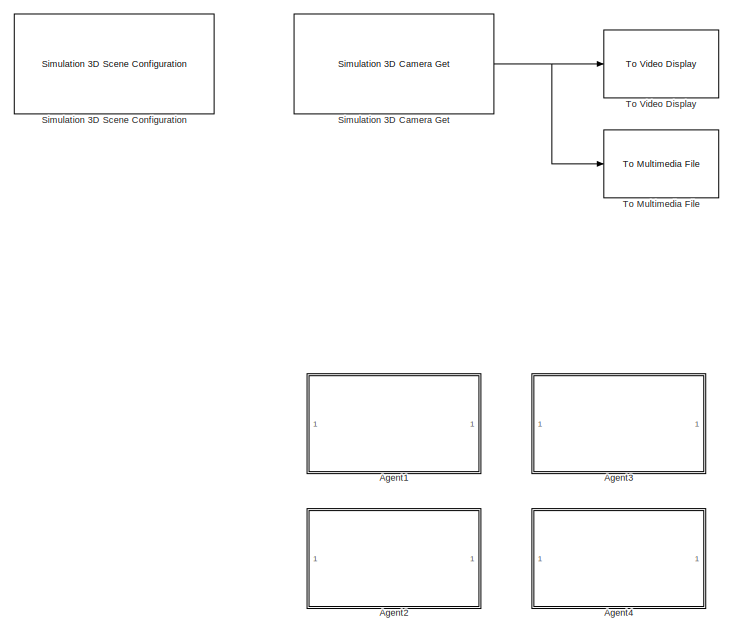
[diagram: root canvas - part 1/2, full width, top band]
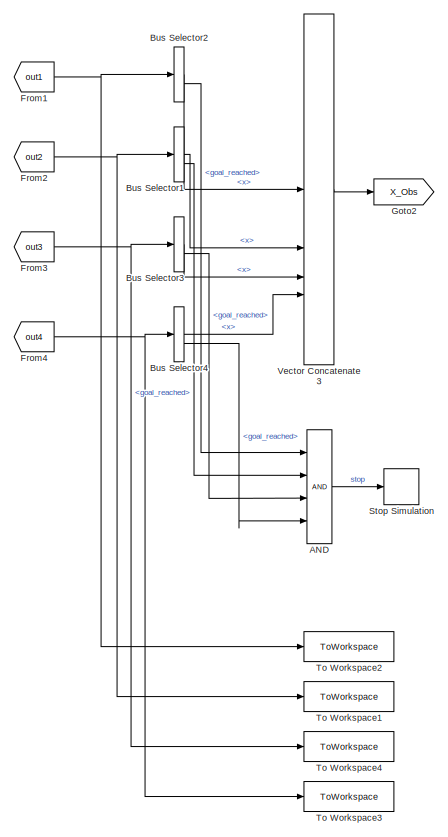
[diagram: root canvas - part 2/2, bottom left region]
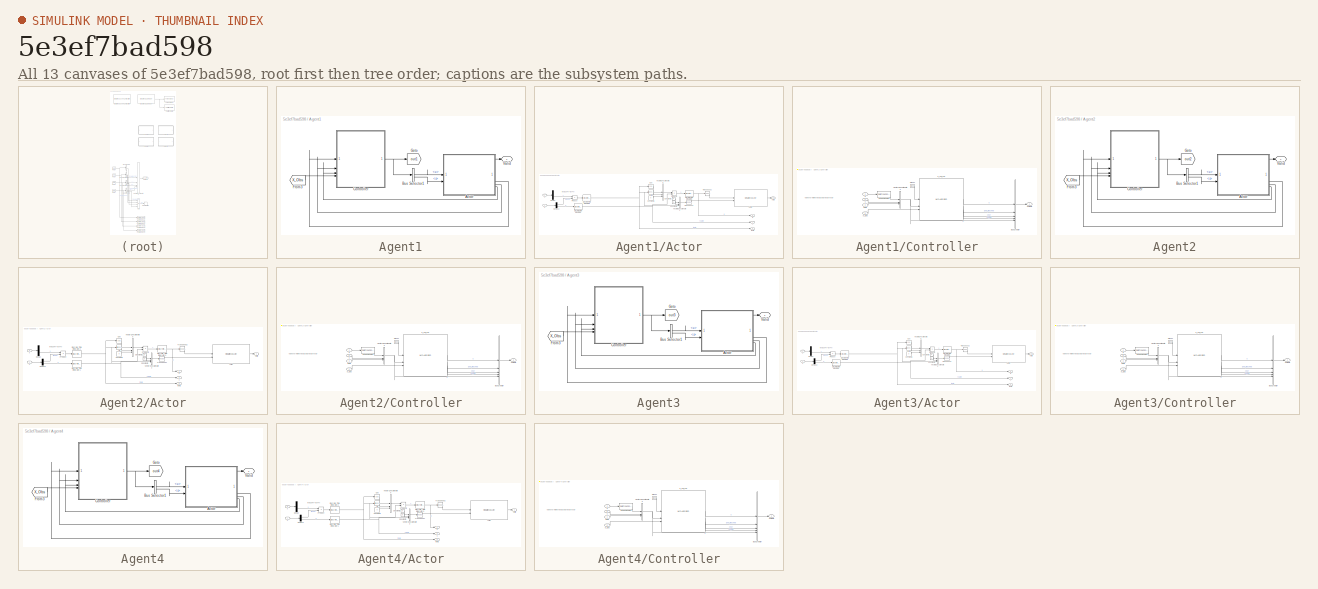
[diagram: thumbnail index - all 13 canvases of the model, root first then tree order]
MODEL slx_5e3ef7bad598
KIND model
CONFIG AbsTol = auto
CONFIG EnableMultiTasking = off
CONFIG FixedStep = config.timestep
CONFIG MaxStep = auto
CONFIG MinStep = auto
CONFIG RelTol = 1e-3
CONFIG SampleTimeConstraint = Unconstrained
CONFIG SolverName = FixedStepAuto
CONFIG StartTime = 0.0
CONFIG StopTime = config.t_max
BLOCK [Logic] AND
  AllPortsSameDT = off
  IconShape = distinctive
  Inputs = 4
  OutDataTypeStr = boolean
BLOCK [SubSystem] Agent1
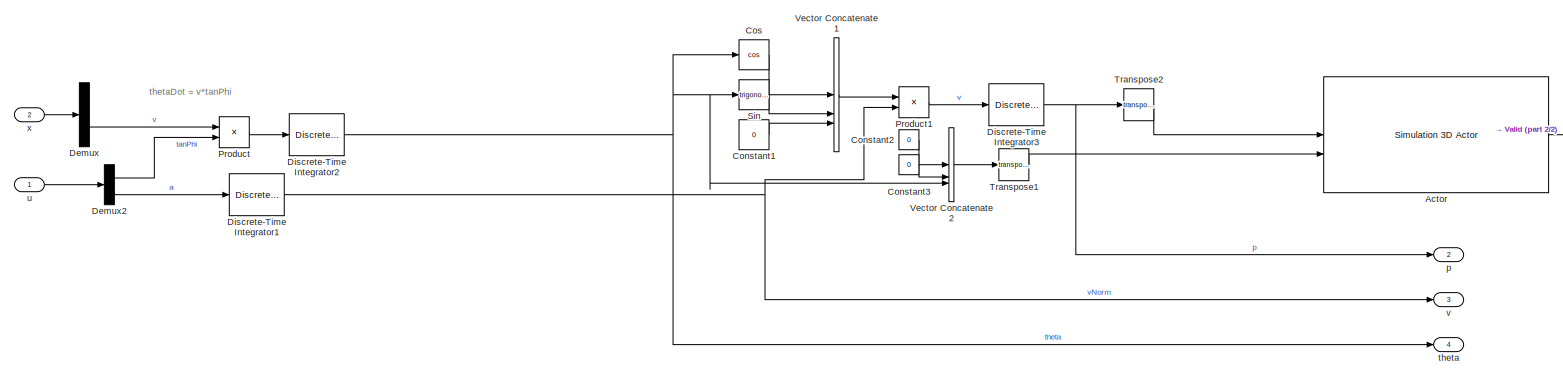
[diagram: Agent1/Actor - part 1/2, most of the canvas]
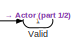
[diagram: Agent1/Actor - part 2/2, middle right region]
BLOCK [SubSystem] Agent1/Actor
BLOCK [Reference] Agent1/Actor/Actor  REF=sim3dlib/Simulation 3D Actor
  LibrarySourceBlock = sl3dlib/Simulation 3D/Actors/Simulation 3D Actor
  Priority = 1
  SourceBlock = sim3dlib/Simulation 3D Actor
  SourceType = Simulation 3D Actor
BLOCK [Constant] Agent1/Actor/Constant1
  Value = 0
BLOCK [Constant] Agent1/Actor/Constant2
  Value = 0
BLOCK [Constant] Agent1/Actor/Constant3
  Value = 0
BLOCK [Trigonometry] Agent1/Actor/Cos
  Operator = cos
BLOCK [Demux] Agent1/Actor/Demux
  Outputs = 5
BLOCK [Demux] Agent1/Actor/Demux2
  Outputs = 2
BLOCK [DiscreteIntegrator] Agent1/Actor/Discrete-Time Integrator1
  ICPrevOutput = DiscIntNeverNeededParam
  ICPrevScaledInput = DiscIntNeverNeededParam
  InitialCondition = agentsInfo{id}.v
  InitialConditionSetting = Auto
  LimitOutput = on
  LowerSaturationLimit = -config.v_max/sqrt(2)
  SampleTime = -1
  UpperSaturationLimit = config.v_max/sqrt(2)
BLOCK [DiscreteIntegrator] Agent1/Actor/Discrete-Time Integrator2
  ICPrevOutput = DiscIntNeverNeededParam
  ICPrevScaledInput = DiscIntNeverNeededParam
  InitialCondition = agentsInfo{id}.theta
  InitialConditionSetting = Auto
  SampleTime = -1
BLOCK [DiscreteIntegrator] Agent1/Actor/Discrete-Time Integrator3
  ICPrevOutput = DiscIntNeverNeededParam
  ICPrevScaledInput = DiscIntNeverNeededParam
  InitialCondition = agentsInfo{id}.p
  InitialConditionSetting = Auto
  LowerSaturationLimit = -config.vMax
  SampleTime = -1
  UpperSaturationLimit = config.vMax
BLOCK [Product] Agent1/Actor/Product
BLOCK [Product] Agent1/Actor/Product1
BLOCK [Trigonometry] Agent1/Actor/Sin
BLOCK [Math] Agent1/Actor/Transpose1
  Operator = transpose
BLOCK [Math] Agent1/Actor/Transpose2
  Operator = transpose
BLOCK [Outport] Agent1/Actor/Valid
BLOCK [Concatenate] Agent1/Actor/Vector Concatenate1
  NumInputs = 3
BLOCK [Concatenate] Agent1/Actor/Vector Concatenate2
  NumInputs = 3
BLOCK [Outport] Agent1/Actor/p
  Port = 2
BLOCK [Outport] Agent1/Actor/theta
  Port = 4
BLOCK [Inport] Agent1/Actor/u
BLOCK [Outport] Agent1/Actor/v
  Port = 3
BLOCK [Inport] Agent1/Actor/x
  Port = 2
BLOCK [BusSelector] Agent1/Bus Selector1
  OutputSignals = u,x
BLOCK [SubSystem] Agent1/Controller
BLOCK [BusCreator] Agent1/Controller/Bus Creator
  DisplayOption = bar
  InheritFromInputs = on
  Inputs = 5
BLOCK [DataTypeConversion] Agent1/Controller/Cast To Double2
  OutDataTypeStr = double
  RndMeth = Floor
  SaturateOnIntegerOverflow = off
BLOCK [Clock] Agent1/Controller/Clock1
BLOCK [Concatenate] Agent1/Controller/Vector Concatenate2
  NumInputs = 3
BLOCK [Inport] Agent1/Controller/X_Obs
  Port = 4
BLOCK [MATLABSystem] Agent1/Controller/h_cbf_car
  MaskDisplay = disp('h_cbf_car');\nport_label('input',1,'t');\nport_label('input',2,'x');\nport_label('input',3,'X_obs');\nport_label('output',1,'u');\nport_label('output',2,'goal_reached');\nport_label('output',3,'cost');\nport_label('output',4,'exit_flag');  <repeated x4 — deduplicated; at blocks: h_cbf_car>
  MaskType = h_cbf_car
  SimulateUsing = Interpreted execution
  System = h_cbf_car
  agents_info = agentsInfo
  config = config
  id = id
BLOCK [Outport] Agent1/Controller/outData
BLOCK [Inport] Agent1/Controller/p
BLOCK [Inport] Agent1/Controller/theta
  Port = 3
BLOCK [Inport] Agent1/Controller/v
  Port = 2
BLOCK [From] Agent1/From3
  GotoTag = X_Obs
  TagVisibility = global
BLOCK [Goto] Agent1/Goto
  GotoTag = out1
  TagVisibility = global
BLOCK [Outport] Agent1/Valid
BLOCK [SubSystem] Agent2
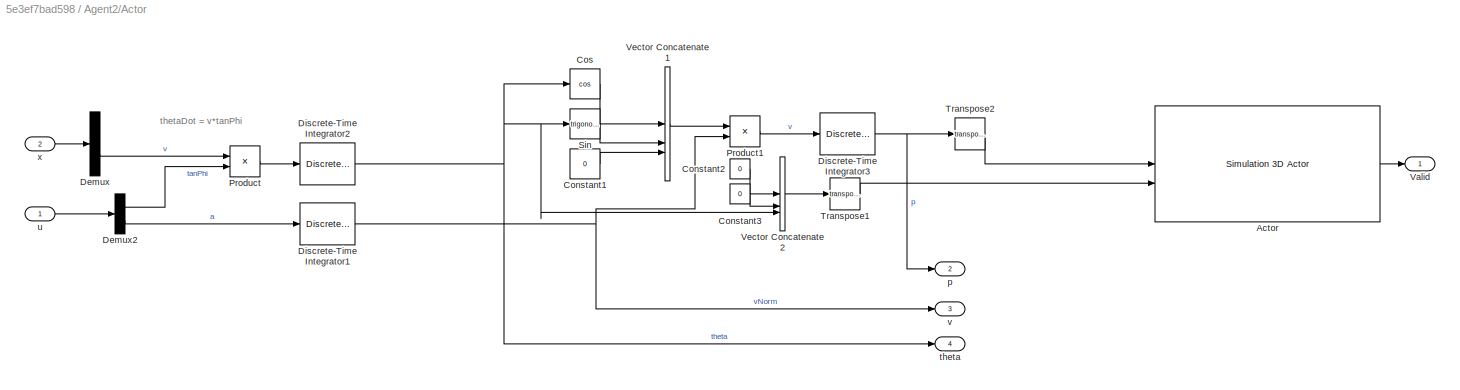
BLOCK [SubSystem] Agent2/Actor
BLOCK [Reference] Agent2/Actor/Actor  REF=sim3dlib/Simulation 3D Actor
  LibrarySourceBlock = sl3dlib/Simulation 3D/Actors/Simulation 3D Actor
  Priority = 1
  SourceBlock = sim3dlib/Simulation 3D Actor
  SourceType = Simulation 3D Actor
BLOCK [Constant] Agent2/Actor/Constant1
  Value = 0
BLOCK [Constant] Agent2/Actor/Constant2
  Value = 0
BLOCK [Constant] Agent2/Actor/Constant3
  Value = 0
BLOCK [Trigonometry] Agent2/Actor/Cos
  Operator = cos
BLOCK [Demux] Agent2/Actor/Demux
  Outputs = 5
BLOCK [Demux] Agent2/Actor/Demux2
  Outputs = 2
BLOCK [DiscreteIntegrator] Agent2/Actor/Discrete-Time Integrator1
  ICPrevOutput = DiscIntNeverNeededParam
  ICPrevScaledInput = DiscIntNeverNeededParam
  InitialCondition = agentsInfo{id}.v
  InitialConditionSetting = Auto
  LimitOutput = on
  LowerSaturationLimit = -config.v_max/sqrt(2)
  SampleTime = -1
  UpperSaturationLimit = config.v_max/sqrt(2)
BLOCK [DiscreteIntegrator] Agent2/Actor/Discrete-Time Integrator2
  ICPrevOutput = DiscIntNeverNeededParam
  ICPrevScaledInput = DiscIntNeverNeededParam
  InitialCondition = agentsInfo{id}.theta
  InitialConditionSetting = Auto
  SampleTime = -1
BLOCK [DiscreteIntegrator] Agent2/Actor/Discrete-Time Integrator3
  ICPrevOutput = DiscIntNeverNeededParam
  ICPrevScaledInput = DiscIntNeverNeededParam
  InitialCondition = agentsInfo{id}.p
  InitialConditionSetting = Auto
  LowerSaturationLimit = -config.vMax
  SampleTime = -1
  UpperSaturationLimit = config.vMax
BLOCK [Product] Agent2/Actor/Product
BLOCK [Product] Agent2/Actor/Product1
BLOCK [Trigonometry] Agent2/Actor/Sin
BLOCK [Math] Agent2/Actor/Transpose1
  Operator = transpose
BLOCK [Math] Agent2/Actor/Transpose2
  Operator = transpose
BLOCK [Outport] Agent2/Actor/Valid
BLOCK [Concatenate] Agent2/Actor/Vector Concatenate1
  NumInputs = 3
BLOCK [Concatenate] Agent2/Actor/Vector Concatenate2
  NumInputs = 3
BLOCK [Outport] Agent2/Actor/p
  Port = 2
BLOCK [Outport] Agent2/Actor/theta
  Port = 4
BLOCK [Inport] Agent2/Actor/u
BLOCK [Outport] Agent2/Actor/v
  Port = 3
BLOCK [Inport] Agent2/Actor/x
  Port = 2
BLOCK [BusSelector] Agent2/Bus Selector1
  OutputSignals = u,x
BLOCK [SubSystem] Agent2/Controller
BLOCK [BusCreator] Agent2/Controller/Bus Creator
  DisplayOption = bar
  InheritFromInputs = on
  Inputs = 5
BLOCK [DataTypeConversion] Agent2/Controller/Cast To Double2
  OutDataTypeStr = double
  RndMeth = Floor
  SaturateOnIntegerOverflow = off
BLOCK [Clock] Agent2/Controller/Clock1
BLOCK [Concatenate] Agent2/Controller/Vector Concatenate2
  NumInputs = 3
BLOCK [Inport] Agent2/Controller/X_Obs
  Port = 4
BLOCK [MATLABSystem] Agent2/Controller/h_cbf_car
  MaskType = h_cbf_car
  SimulateUsing = Interpreted execution
  System = h_cbf_car
  agents_info = agentsInfo
  config = config
  id = id
BLOCK [Outport] Agent2/Controller/outData
BLOCK [Inport] Agent2/Controller/p
BLOCK [Inport] Agent2/Controller/theta
  Port = 3
BLOCK [Inport] Agent2/Controller/v
  Port = 2
BLOCK [From] Agent2/From3
  GotoTag = X_Obs
  TagVisibility = global
BLOCK [Goto] Agent2/Goto
  GotoTag = out2
  TagVisibility = global
BLOCK [Outport] Agent2/Valid
BLOCK [SubSystem] Agent3
BLOCK [SubSystem] Agent3/Actor
BLOCK [Reference] Agent3/Actor/Actor  REF=sim3dlib/Simulation 3D Actor
  LibrarySourceBlock = sl3dlib/Simulation 3D/Actors/Simulation 3D Actor
  Priority = 1
  SourceBlock = sim3dlib/Simulation 3D Actor
  SourceType = Simulation 3D Actor
BLOCK [Constant] Agent3/Actor/Constant1
  Value = 0
BLOCK [Constant] Agent3/Actor/Constant2
  Value = 0
BLOCK [Constant] Agent3/Actor/Constant3
  Value = 0
BLOCK [Trigonometry] Agent3/Actor/Cos
  Operator = cos
BLOCK [Demux] Agent3/Actor/Demux
  Outputs = 5
BLOCK [Demux] Agent3/Actor/Demux2
  Outputs = 2
BLOCK [DiscreteIntegrator] Agent3/Actor/Discrete-Time Integrator1
  ICPrevOutput = DiscIntNeverNeededParam
  ICPrevScaledInput = DiscIntNeverNeededParam
  InitialCondition = agentsInfo{id}.v
  InitialConditionSetting = Auto
  LimitOutput = on
  LowerSaturationLimit = -config.v_max/sqrt(2)
  SampleTime = -1
  UpperSaturationLimit = config.v_max/sqrt(2)
BLOCK [DiscreteIntegrator] Agent3/Actor/Discrete-Time Integrator2
  ICPrevOutput = DiscIntNeverNeededParam
  ICPrevScaledInput = DiscIntNeverNeededParam
  InitialCondition = agentsInfo{id}.theta
  InitialConditionSetting = Auto
  SampleTime = -1
BLOCK [DiscreteIntegrator] Agent3/Actor/Discrete-Time Integrator3
  ICPrevOutput = DiscIntNeverNeededParam
  ICPrevScaledInput = DiscIntNeverNeededParam
  InitialCondition = agentsInfo{id}.p
  InitialConditionSetting = Auto
  LowerSaturationLimit = -config.vMax
  SampleTime = -1
  UpperSaturationLimit = config.vMax
BLOCK [Product] Agent3/Actor/Product
BLOCK [Product] Agent3/Actor/Product1
BLOCK [Trigonometry] Agent3/Actor/Sin
BLOCK [Math] Agent3/Actor/Transpose1
  Operator = transpose
BLOCK [Math] Agent3/Actor/Transpose2
  Operator = transpose
BLOCK [Outport] Agent3/Actor/Valid
BLOCK [Concatenate] Agent3/Actor/Vector Concatenate1
  NumInputs = 3
BLOCK [Concatenate] Agent3/Actor/Vector Concatenate2
  NumInputs = 3
BLOCK [Outport] Agent3/Actor/p
  Port = 2
BLOCK [Outport] Agent3/Actor/theta
  Port = 4
BLOCK [Inport] Agent3/Actor/u
BLOCK [Outport] Agent3/Actor/v
  Port = 3
BLOCK [Inport] Agent3/Actor/x
  Port = 2
BLOCK [BusSelector] Agent3/Bus Selector1
  OutputSignals = u,x
BLOCK [SubSystem] Agent3/Controller
BLOCK [BusCreator] Agent3/Controller/Bus Creator
  DisplayOption = bar
  InheritFromInputs = on
  Inputs = 5
BLOCK [DataTypeConversion] Agent3/Controller/Cast To Double2
  OutDataTypeStr = double
  RndMeth = Floor
  SaturateOnIntegerOverflow = off
BLOCK [Clock] Agent3/Controller/Clock1
BLOCK [Concatenate] Agent3/Controller/Vector Concatenate2
  NumInputs = 3
BLOCK [Inport] Agent3/Controller/X_Obs
  Port = 4
BLOCK [MATLABSystem] Agent3/Controller/h_cbf_car
  MaskType = h_cbf_car
  SimulateUsing = Interpreted execution
  System = h_cbf_car
  agents_info = agentsInfo
  config = config
  id = id
BLOCK [Outport] Agent3/Controller/outData
BLOCK [Inport] Agent3/Controller/p
BLOCK [Inport] Agent3/Controller/theta
  Port = 3
BLOCK [Inport] Agent3/Controller/v
  Port = 2
BLOCK [From] Agent3/From3
  GotoTag = X_Obs
  TagVisibility = global
BLOCK [Goto] Agent3/Goto
  GotoTag = out3
  TagVisibility = global
BLOCK [Outport] Agent3/Valid
BLOCK [SubSystem] Agent4
BLOCK [SubSystem] Agent4/Actor
BLOCK [Reference] Agent4/Actor/Actor  REF=sim3dlib/Simulation 3D Actor
  LibrarySourceBlock = sl3dlib/Simulation 3D/Actors/Simulation 3D Actor
  Priority = 1
  SourceBlock = sim3dlib/Simulation 3D Actor
  SourceType = Simulation 3D Actor
BLOCK [Constant] Agent4/Actor/Constant1
  Value = 0
BLOCK [Constant] Agent4/Actor/Constant2
  Value = 0
BLOCK [Constant] Agent4/Actor/Constant3
  Value = 0
BLOCK [Trigonometry] Agent4/Actor/Cos
  Operator = cos
BLOCK [Demux] Agent4/Actor/Demux
  Outputs = 5
BLOCK [Demux] Agent4/Actor/Demux2
  Outputs = 2
BLOCK [DiscreteIntegrator] Agent4/Actor/Discrete-Time Integrator1
  ICPrevOutput = DiscIntNeverNeededParam
  ICPrevScaledInput = DiscIntNeverNeededParam
  InitialCondition = agentsInfo{id}.v
  InitialConditionSetting = Auto
  LimitOutput = on
  LowerSaturationLimit = -config.v_max/sqrt(2)
  SampleTime = -1
  UpperSaturationLimit = config.v_max/sqrt(2)
BLOCK [DiscreteIntegrator] Agent4/Actor/Discrete-Time Integrator2
  ICPrevOutput = DiscIntNeverNeededParam
  ICPrevScaledInput = DiscIntNeverNeededParam
  InitialCondition = agentsInfo{id}.theta
  InitialConditionSetting = Auto
  SampleTime = -1
BLOCK [DiscreteIntegrator] Agent4/Actor/Discrete-Time Integrator3
  ICPrevOutput = DiscIntNeverNeededParam
  ICPrevScaledInput = DiscIntNeverNeededParam
  InitialCondition = agentsInfo{id}.p
  InitialConditionSetting = Auto
  LowerSaturationLimit = -config.vMax
  SampleTime = -1
  UpperSaturationLimit = config.vMax
BLOCK [Product] Agent4/Actor/Product
BLOCK [Product] Agent4/Actor/Product1
BLOCK [Trigonometry] Agent4/Actor/Sin
BLOCK [Math] Agent4/Actor/Transpose1
  Operator = transpose
BLOCK [Math] Agent4/Actor/Transpose2
  Operator = transpose
BLOCK [Outport] Agent4/Actor/Valid
BLOCK [Concatenate] Agent4/Actor/Vector Concatenate1
  NumInputs = 3
BLOCK [Concatenate] Agent4/Actor/Vector Concatenate2
  NumInputs = 3
BLOCK [Outport] Agent4/Actor/p
  Port = 2
BLOCK [Outport] Agent4/Actor/theta
  Port = 4
BLOCK [Inport] Agent4/Actor/u
BLOCK [Outport] Agent4/Actor/v
  Port = 3
BLOCK [Inport] Agent4/Actor/x
  Port = 2
BLOCK [BusSelector] Agent4/Bus Selector1
  OutputSignals = u,x
BLOCK [SubSystem] Agent4/Controller
BLOCK [BusCreator] Agent4/Controller/Bus Creator
  DisplayOption = bar
  InheritFromInputs = on
  Inputs = 5
BLOCK [DataTypeConversion] Agent4/Controller/Cast To Double2
  OutDataTypeStr = double
  RndMeth = Floor
  SaturateOnIntegerOverflow = off
BLOCK [Clock] Agent4/Controller/Clock1
BLOCK [Concatenate] Agent4/Controller/Vector Concatenate2
  NumInputs = 3
BLOCK [Inport] Agent4/Controller/X_Obs
  Port = 4
BLOCK [MATLABSystem] Agent4/Controller/h_cbf_car
  MaskType = h_cbf_car
  SimulateUsing = Interpreted execution
  System = h_cbf_car
  agents_info = agentsInfo
  config = config
  id = id
BLOCK [Outport] Agent4/Controller/outData
BLOCK [Inport] Agent4/Controller/p
BLOCK [Inport] Agent4/Controller/theta
  Port = 3
BLOCK [Inport] Agent4/Controller/v
  Port = 2
BLOCK [From] Agent4/From3
  GotoTag = X_Obs
  TagVisibility = global
BLOCK [Goto] Agent4/Goto
  GotoTag = out4
  TagVisibility = global
BLOCK [Outport] Agent4/Valid
BLOCK [BusSelector] Bus Selector1
  OutputSignals = x,goal_reached
BLOCK [BusSelector] Bus Selector2
  OutputSignals = x,goal_reached
BLOCK [BusSelector] Bus Selector3
  OutputSignals = x,goal_reached
BLOCK [BusSelector] Bus Selector4
  OutputSignals = x,goal_reached
BLOCK [From] From1
  GotoTag = out1
  TagVisibility = global
BLOCK [From] From2
  GotoTag = out2
  TagVisibility = global
BLOCK [From] From3
  GotoTag = out3
  TagVisibility = global
BLOCK [From] From4
  GotoTag = out4
  TagVisibility = global
BLOCK [Goto] Goto2
  GotoTag = X_Obs
  TagVisibility = global
BLOCK [Reference] Simulation 3D Camera Get  REF=sim3dlib/Simulation 3D Camera Get
  LibrarySourceBlock = sl3dlib/Simulation 3D/Utilities/Simulation 3D Camera Get
  Priority = 1
  SourceBlock = sim3dlib/Simulation 3D Camera Get
  SourceType = Simulation 3D Camera Get
BLOCK [Reference] Simulation 3D Scene Configuration  REF=sim3dlib/Simulation 3D Scene Configuration
  LibrarySourceBlock = sl3dlib/Simulation 3D/Environment/Simulation 3D Scene Configuration
  Priority = 0
  SourceBlock = sim3dlib/Simulation 3D Scene Configuration
  SourceType = Simulation 3D Scene Configuration
BLOCK [Stop] Stop Simulation
BLOCK [Reference] To Multimedia File  REF=dspvision/To Multimedia File
  LibrarySourceBlock = visionsinks/To Multimedia File
  SourceBlock = dspvision/To Multimedia File
  SourceType = To Multimedia File
BLOCK [Reference] To Video Display  REF=visionsinks/To Video Display
  SourceBlock = visionsinks/To Video Display
  SourceType = To Video Display
BLOCK [ToWorkspace] To Workspace1
  FixptAsFi = on
  MaxDataPoints = inf
  SampleTime = -1
  SaveFormat = Timeseries
  VariableName = agent2
BLOCK [ToWorkspace] To Workspace2
  FixptAsFi = on
  MaxDataPoints = inf
  SampleTime = -1
  SaveFormat = Timeseries
  VariableName = agent1
BLOCK [ToWorkspace] To Workspace3
  FixptAsFi = on
  MaxDataPoints = inf
  SampleTime = -1
  SaveFormat = Timeseries
  VariableName = agent4
BLOCK [ToWorkspace] To Workspace4
  FixptAsFi = on
  MaxDataPoints = inf
  SampleTime = -1
  SaveFormat = Timeseries
  VariableName = agent3
BLOCK [Concatenate] Vector Concatenate3
  ConcatenateDimension = 2
  Mode = Multidimensional array
  NumInputs = 4
ANNOTATION Agent1/Actor: thetaDot = v*tanPhi
ANNOTATION Agent1/Controller: v is the norm of the velocity, not a velocity vector
ANNOTATION Agent2/Actor: thetaDot = v*tanPhi
ANNOTATION Agent2/Controller: v is the norm of the velocity, not a velocity vector
ANNOTATION Agent3/Actor: thetaDot = v*tanPhi
ANNOTATION Agent3/Controller: v is the norm of the velocity, not a velocity vector
ANNOTATION Agent4/Actor: thetaDot = v*tanPhi
ANNOTATION Agent4/Controller: v is the norm of the velocity, not a velocity vector
LINE AND:1 -> Stop Simulation:1
LINE Agent1/Actor/Actor:1 -> Agent1/Actor/Valid:1
LINE Agent1/Actor/Constant1:1 -> Agent1/Actor/Vector Concatenate1:3
LINE Agent1/Actor/Constant2:1 -> Agent1/Actor/Vector Concatenate2:1
LINE Agent1/Actor/Constant3:1 -> Agent1/Actor/Vector Concatenate2:2
LINE Agent1/Actor/Cos:1 -> Agent1/Actor/Vector Concatenate1:1
LINE Agent1/Actor/Demux2:1 -> Agent1/Actor/Product:2
LINE Agent1/Actor/Demux2:2 -> Agent1/Actor/Discrete-Time Integrator1:1
LINE Agent1/Actor/Demux:4 -> Agent1/Actor/Product:1
NET Agent1/Actor/Discrete-Time Integrator1:1 -> Agent1/Actor/Product1:2, Agent1/Actor/v:1
NET Agent1/Actor/Discrete-Time Integrator2:1 -> Agent1/Actor/Cos:1, Agent1/Actor/Sin:1, Agent1/Actor/Vector Concatenate2:3, Agent1/Actor/theta:1
NET Agent1/Actor/Discrete-Time Integrator3:1 -> Agent1/Actor/Transpose2:1, Agent1/Actor/p:1
LINE Agent1/Actor/Product1:1 -> Agent1/Actor/Discrete-Time Integrator3:1
LINE Agent1/Actor/Product:1 -> Agent1/Actor/Discrete-Time Integrator2:1
LINE Agent1/Actor/Sin:1 -> Agent1/Actor/Vector Concatenate1:2
LINE Agent1/Actor/Transpose1:1 -> Agent1/Actor/Actor:2
LINE Agent1/Actor/Transpose2:1 -> Agent1/Actor/Actor:1
LINE Agent1/Actor/Vector Concatenate1:1 -> Agent1/Actor/Product1:1
LINE Agent1/Actor/Vector Concatenate2:1 -> Agent1/Actor/Transpose1:1
LINE Agent1/Actor/u:1 -> Agent1/Actor/Demux2:1
LINE Agent1/Actor/x:1 -> Agent1/Actor/Demux:1
LINE Agent1/Actor:1 -> Agent1/Valid:1
LINE Agent1/Actor:2 -> Agent1/Controller:1
LINE Agent1/Actor:3 -> Agent1/Controller:2
LINE Agent1/Actor:4 -> Agent1/Controller:3
LINE Agent1/Bus Selector1:1 -> Agent1/Actor:1
LINE Agent1/Bus Selector1:2 -> Agent1/Actor:2
LINE Agent1/Controller/Bus Creator:1 -> Agent1/Controller/outData:1
LINE Agent1/Controller/Cast To Double2:1 -> Agent1/Controller/Vector Concatenate2:1
LINE Agent1/Controller/Clock1:1 -> Agent1/Controller/h_cbf_car:1
NET Agent1/Controller/Vector Concatenate2:1 -> Agent1/Controller/Bus Creator:5, Agent1/Controller/h_cbf_car:2
LINE Agent1/Controller/X_Obs:1 -> Agent1/Controller/h_cbf_car:3
LINE Agent1/Controller/h_cbf_car:1 -> Agent1/Controller/Bus Creator:1
LINE Agent1/Controller/h_cbf_car:2 -> Agent1/Controller/Bus Creator:2
LINE Agent1/Controller/h_cbf_car:3 -> Agent1/Controller/Bus Creator:3
LINE Agent1/Controller/h_cbf_car:4 -> Agent1/Controller/Bus Creator:4
LINE Agent1/Controller/p:1 -> Agent1/Controller/Cast To Double2:1
LINE Agent1/Controller/theta:1 -> Agent1/Controller/Vector Concatenate2:3
LINE Agent1/Controller/v:1 -> Agent1/Controller/Vector Concatenate2:2
NET Agent1/Controller:1 -> Agent1/Bus Selector1:1, Agent1/Goto:1
LINE Agent1/From3:1 -> Agent1/Controller:4
LINE Agent2/Actor/Actor:1 -> Agent2/Actor/Valid:1
LINE Agent2/Actor/Constant1:1 -> Agent2/Actor/Vector Concatenate1:3
LINE Agent2/Actor/Constant2:1 -> Agent2/Actor/Vector Concatenate2:1
LINE Agent2/Actor/Constant3:1 -> Agent2/Actor/Vector Concatenate2:2
LINE Agent2/Actor/Cos:1 -> Agent2/Actor/Vector Concatenate1:1
LINE Agent2/Actor/Demux2:1 -> Agent2/Actor/Product:2
LINE Agent2/Actor/Demux2:2 -> Agent2/Actor/Discrete-Time Integrator1:1
LINE Agent2/Actor/Demux:4 -> Agent2/Actor/Product:1
NET Agent2/Actor/Discrete-Time Integrator1:1 -> Agent2/Actor/Product1:2, Agent2/Actor/v:1
NET Agent2/Actor/Discrete-Time Integrator2:1 -> Agent2/Actor/Cos:1, Agent2/Actor/Sin:1, Agent2/Actor/Vector Concatenate2:3, Agent2/Actor/theta:1
NET Agent2/Actor/Discrete-Time Integrator3:1 -> Agent2/Actor/Transpose2:1, Agent2/Actor/p:1
LINE Agent2/Actor/Product1:1 -> Agent2/Actor/Discrete-Time Integrator3:1
LINE Agent2/Actor/Product:1 -> Agent2/Actor/Discrete-Time Integrator2:1
LINE Agent2/Actor/Sin:1 -> Agent2/Actor/Vector Concatenate1:2
LINE Agent2/Actor/Transpose1:1 -> Agent2/Actor/Actor:2
LINE Agent2/Actor/Transpose2:1 -> Agent2/Actor/Actor:1
LINE Agent2/Actor/Vector Concatenate1:1 -> Agent2/Actor/Product1:1
LINE Agent2/Actor/Vector Concatenate2:1 -> Agent2/Actor/Transpose1:1
LINE Agent2/Actor/u:1 -> Agent2/Actor/Demux2:1
LINE Agent2/Actor/x:1 -> Agent2/Actor/Demux:1
LINE Agent2/Actor:1 -> Agent2/Valid:1
LINE Agent2/Actor:2 -> Agent2/Controller:1
LINE Agent2/Actor:3 -> Agent2/Controller:2
LINE Agent2/Actor:4 -> Agent2/Controller:3
LINE Agent2/Bus Selector1:1 -> Agent2/Actor:1
LINE Agent2/Bus Selector1:2 -> Agent2/Actor:2
LINE Agent2/Controller/Bus Creator:1 -> Agent2/Controller/outData:1
LINE Agent2/Controller/Cast To Double2:1 -> Agent2/Controller/Vector Concatenate2:1
LINE Agent2/Controller/Clock1:1 -> Agent2/Controller/h_cbf_car:1
NET Agent2/Controller/Vector Concatenate2:1 -> Agent2/Controller/Bus Creator:5, Agent2/Controller/h_cbf_car:2
LINE Agent2/Controller/X_Obs:1 -> Agent2/Controller/h_cbf_car:3
LINE Agent2/Controller/h_cbf_car:1 -> Agent2/Controller/Bus Creator:1
LINE Agent2/Controller/h_cbf_car:2 -> Agent2/Controller/Bus Creator:2
LINE Agent2/Controller/h_cbf_car:3 -> Agent2/Controller/Bus Creator:3
LINE Agent2/Controller/h_cbf_car:4 -> Agent2/Controller/Bus Creator:4
LINE Agent2/Controller/p:1 -> Agent2/Controller/Cast To Double2:1
LINE Agent2/Controller/theta:1 -> Agent2/Controller/Vector Concatenate2:3
LINE Agent2/Controller/v:1 -> Agent2/Controller/Vector Concatenate2:2
NET Agent2/Controller:1 -> Agent2/Bus Selector1:1, Agent2/Goto:1
LINE Agent2/From3:1 -> Agent2/Controller:4
LINE Agent3/Actor/Actor:1 -> Agent3/Actor/Valid:1
LINE Agent3/Actor/Constant1:1 -> Agent3/Actor/Vector Concatenate1:3
LINE Agent3/Actor/Constant2:1 -> Agent3/Actor/Vector Concatenate2:1
LINE Agent3/Actor/Constant3:1 -> Agent3/Actor/Vector Concatenate2:2
LINE Agent3/Actor/Cos:1 -> Agent3/Actor/Vector Concatenate1:1
LINE Agent3/Actor/Demux2:1 -> Agent3/Actor/Product:2
LINE Agent3/Actor/Demux2:2 -> Agent3/Actor/Discrete-Time Integrator1:1
LINE Agent3/Actor/Demux:4 -> Agent3/Actor/Product:1
NET Agent3/Actor/Discrete-Time Integrator1:1 -> Agent3/Actor/Product1:2, Agent3/Actor/v:1
NET Agent3/Actor/Discrete-Time Integrator2:1 -> Agent3/Actor/Cos:1, Agent3/Actor/Sin:1, Agent3/Actor/Vector Concatenate2:3, Agent3/Actor/theta:1
NET Agent3/Actor/Discrete-Time Integrator3:1 -> Agent3/Actor/Transpose2:1, Agent3/Actor/p:1
LINE Agent3/Actor/Product1:1 -> Agent3/Actor/Discrete-Time Integrator3:1
LINE Agent3/Actor/Product:1 -> Agent3/Actor/Discrete-Time Integrator2:1
LINE Agent3/Actor/Sin:1 -> Agent3/Actor/Vector Concatenate1:2
LINE Agent3/Actor/Transpose1:1 -> Agent3/Actor/Actor:2
LINE Agent3/Actor/Transpose2:1 -> Agent3/Actor/Actor:1
LINE Agent3/Actor/Vector Concatenate1:1 -> Agent3/Actor/Product1:1
LINE Agent3/Actor/Vector Concatenate2:1 -> Agent3/Actor/Transpose1:1
LINE Agent3/Actor/u:1 -> Agent3/Actor/Demux2:1
LINE Agent3/Actor/x:1 -> Agent3/Actor/Demux:1
LINE Agent3/Actor:1 -> Agent3/Valid:1
LINE Agent3/Actor:2 -> Agent3/Controller:1
LINE Agent3/Actor:3 -> Agent3/Controller:2
LINE Agent3/Actor:4 -> Agent3/Controller:3
LINE Agent3/Bus Selector1:1 -> Agent3/Actor:1
LINE Agent3/Bus Selector1:2 -> Agent3/Actor:2
LINE Agent3/Controller/Bus Creator:1 -> Agent3/Controller/outData:1
LINE Agent3/Controller/Cast To Double2:1 -> Agent3/Controller/Vector Concatenate2:1
LINE Agent3/Controller/Clock1:1 -> Agent3/Controller/h_cbf_car:1
NET Agent3/Controller/Vector Concatenate2:1 -> Agent3/Controller/Bus Creator:5, Agent3/Controller/h_cbf_car:2
LINE Agent3/Controller/X_Obs:1 -> Agent3/Controller/h_cbf_car:3
LINE Agent3/Controller/h_cbf_car:1 -> Agent3/Controller/Bus Creator:1
LINE Agent3/Controller/h_cbf_car:2 -> Agent3/Controller/Bus Creator:2
LINE Agent3/Controller/h_cbf_car:3 -> Agent3/Controller/Bus Creator:3
LINE Agent3/Controller/h_cbf_car:4 -> Agent3/Controller/Bus Creator:4
LINE Agent3/Controller/p:1 -> Agent3/Controller/Cast To Double2:1
LINE Agent3/Controller/theta:1 -> Agent3/Controller/Vector Concatenate2:3
LINE Agent3/Controller/v:1 -> Agent3/Controller/Vector Concatenate2:2
NET Agent3/Controller:1 -> Agent3/Bus Selector1:1, Agent3/Goto:1
LINE Agent3/From3:1 -> Agent3/Controller:4
LINE Agent4/Actor/Actor:1 -> Agent4/Actor/Valid:1
LINE Agent4/Actor/Constant1:1 -> Agent4/Actor/Vector Concatenate1:3
LINE Agent4/Actor/Constant2:1 -> Agent4/Actor/Vector Concatenate2:1
LINE Agent4/Actor/Constant3:1 -> Agent4/Actor/Vector Concatenate2:2
LINE Agent4/Actor/Cos:1 -> Agent4/Actor/Vector Concatenate1:1
LINE Agent4/Actor/Demux2:1 -> Agent4/Actor/Product:2
LINE Agent4/Actor/Demux2:2 -> Agent4/Actor/Discrete-Time Integrator1:1
LINE Agent4/Actor/Demux:4 -> Agent4/Actor/Product:1
NET Agent4/Actor/Discrete-Time Integrator1:1 -> Agent4/Actor/Product1:2, Agent4/Actor/v:1
NET Agent4/Actor/Discrete-Time Integrator2:1 -> Agent4/Actor/Cos:1, Agent4/Actor/Sin:1, Agent4/Actor/Vector Concatenate2:3, Agent4/Actor/theta:1
NET Agent4/Actor/Discrete-Time Integrator3:1 -> Agent4/Actor/Transpose2:1, Agent4/Actor/p:1
LINE Agent4/Actor/Product1:1 -> Agent4/Actor/Discrete-Time Integrator3:1
LINE Agent4/Actor/Product:1 -> Agent4/Actor/Discrete-Time Integrator2:1
LINE Agent4/Actor/Sin:1 -> Agent4/Actor/Vector Concatenate1:2
LINE Agent4/Actor/Transpose1:1 -> Agent4/Actor/Actor:2
LINE Agent4/Actor/Transpose2:1 -> Agent4/Actor/Actor:1
LINE Agent4/Actor/Vector Concatenate1:1 -> Agent4/Actor/Product1:1
LINE Agent4/Actor/Vector Concatenate2:1 -> Agent4/Actor/Transpose1:1
LINE Agent4/Actor/u:1 -> Agent4/Actor/Demux2:1
LINE Agent4/Actor/x:1 -> Agent4/Actor/Demux:1
LINE Agent4/Actor:1 -> Agent4/Valid:1
LINE Agent4/Actor:2 -> Agent4/Controller:1
LINE Agent4/Actor:3 -> Agent4/Controller:2
LINE Agent4/Actor:4 -> Agent4/Controller:3
LINE Agent4/Bus Selector1:1 -> Agent4/Actor:1
LINE Agent4/Bus Selector1:2 -> Agent4/Actor:2
LINE Agent4/Controller/Bus Creator:1 -> Agent4/Controller/outData:1
LINE Agent4/Controller/Cast To Double2:1 -> Agent4/Controller/Vector Concatenate2:1
LINE Agent4/Controller/Clock1:1 -> Agent4/Controller/h_cbf_car:1
NET Agent4/Controller/Vector Concatenate2:1 -> Agent4/Controller/Bus Creator:5, Agent4/Controller/h_cbf_car:2
LINE Agent4/Controller/X_Obs:1 -> Agent4/Controller/h_cbf_car:3
LINE Agent4/Controller/h_cbf_car:1 -> Agent4/Controller/Bus Creator:1
LINE Agent4/Controller/h_cbf_car:2 -> Agent4/Controller/Bus Creator:2
LINE Agent4/Controller/h_cbf_car:3 -> Agent4/Controller/Bus Creator:3
LINE Agent4/Controller/h_cbf_car:4 -> Agent4/Controller/Bus Creator:4
LINE Agent4/Controller/p:1 -> Agent4/Controller/Cast To Double2:1
LINE Agent4/Controller/theta:1 -> Agent4/Controller/Vector Concatenate2:3
LINE Agent4/Controller/v:1 -> Agent4/Controller/Vector Concatenate2:2
NET Agent4/Controller:1 -> Agent4/Bus Selector1:1, Agent4/Goto:1
LINE Agent4/From3:1 -> Agent4/Controller:4
LINE Bus Selector1:1 -> Vector Concatenate3:2
LINE Bus Selector1:2 -> AND:2
LINE Bus Selector2:1 -> Vector Concatenate3:1
LINE Bus Selector2:2 -> AND:1
LINE Bus Selector3:1 -> Vector Concatenate3:3
LINE Bus Selector3:2 -> AND:3
LINE Bus Selector4:1 -> Vector Concatenate3:4
LINE Bus Selector4:2 -> AND:4
NET From1:1 -> Bus Selector2:1, To Workspace2:1
NET From2:1 -> Bus Selector1:1, To Workspace1:1
NET From3:1 -> Bus Selector3:1, To Workspace4:1
NET From4:1 -> Bus Selector4:1, To Workspace3:1
NET Simulation 3D Camera Get:1 -> To Multimedia File:1, To Video Display:1
LINE Vector Concatenate3:1 -> Goto2:1
note: NET lines group one-source signal fan-out (src -> all destinations, sorted); 1:1 wires keep LINE
